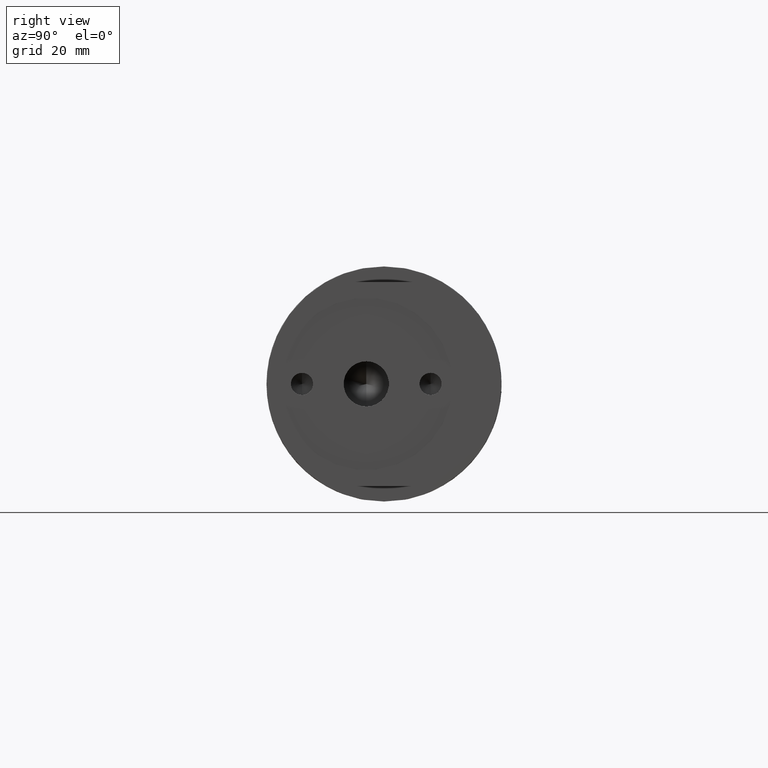
[diagram: clean part render]
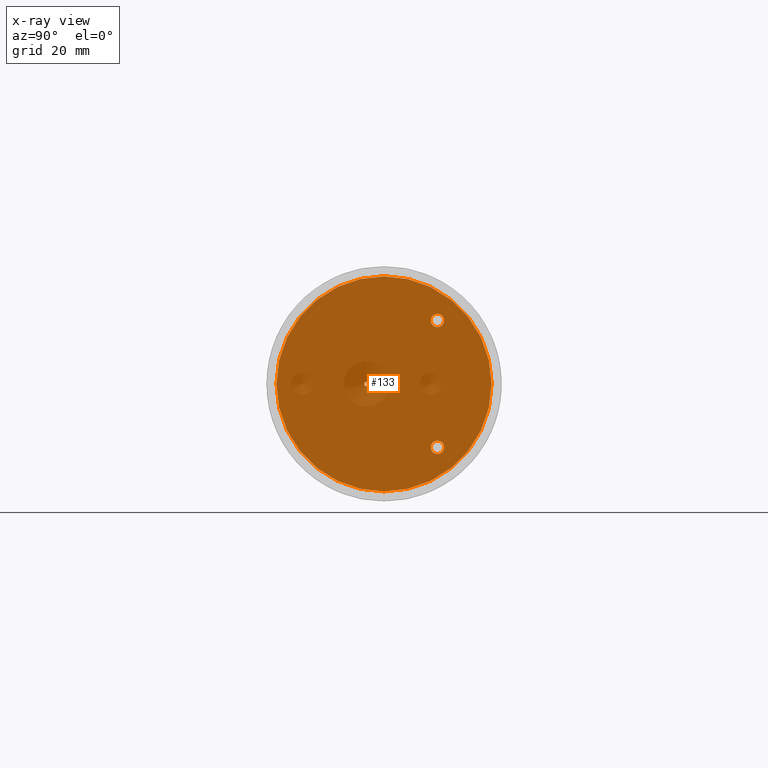
[diagram: x-ray — body ghosted, one internal face saturated and labeled with its STEP entity id]
A machine part, right view, then the same camera in x-ray: the body is ghosted and one INTERNAL B-rep face — a face not visible from any outside direction — is saturated and labeled: STEP entity #133.
In plain terms, the highlighted planar face has unit normal (-1, 0, 0).
Its self-contained STEP definition (entity closure, byte-faithful):
#133 = ADVANCED_FACE ( 'NONE', ( #19493, #13797, #5782, #1884 ), #9683, .T. ) ;
#343 = AXIS2_PLACEMENT_3D ( 'NONE', #17830, #2997, #14654 ) ;
#702 = DIRECTION ( 'NONE',  ( -1.000000000000000000, 0.0000000000000000000, 0.0000000000000000000 ) ) ;
#776 = CARTESIAN_POINT ( 'NONE',  ( -86.00000000000000000, 2.969768487932331700E-015, 24.25000000000000000 ) ) ;
#817 = EDGE_CURVE ( 'NONE', #11658, #9457, #8091, .T. ) ;
#1356 = VERTEX_POINT ( 'NONE', #10509 ) ;
#1413 = AXIS2_PLACEMENT_3D ( 'NONE', #9877, #14859, #11324 ) ;
#1642 = AXIS2_PLACEMENT_3D ( 'NONE', #7788, #19265, #19338 ) ;
#1782 = VERTEX_POINT ( 'NONE', #10558 ) ;
#1884 = FACE_OUTER_BOUND ( 'NONE', #6103, .T. ) ;
#2642 = AXIS2_PLACEMENT_3D ( 'NONE', #20429, #12115, #15293 ) ;
#2755 = CARTESIAN_POINT ( 'NONE',  ( -86.00000000000000000, 0.0000000000000000000, -24.25000000000000000 ) ) ;
#2878 = DIRECTION ( 'NONE',  ( 0.0000000000000000000, 0.0000000000000000000, -1.000000000000000000 ) ) ;
#2934 = AXIS2_PLACEMENT_3D ( 'NONE', #10583, #702, #17176 ) ;
#2997 = DIRECTION ( 'NONE',  ( -1.000000000000000000, 0.0000000000000000000, 0.0000000000000000000 ) ) ;
#3014 = CARTESIAN_POINT ( 'NONE',  ( -86.00000000000000000, -4.000000000000000000, 0.0000000000000000000 ) ) ;
#3291 = CARTESIAN_POINT ( 'NONE',  ( -86.00000000000000000, 12.05000000000000100, 12.80500000000000000 ) ) ;
#4076 = DIRECTION ( 'NONE',  ( 0.0000000000000000000, 0.0000000000000000000, 1.000000000000000000 ) ) ;
#4889 = VERTEX_POINT ( 'NONE', #3291 ) ;
#4892 = DIRECTION ( 'NONE',  ( 0.0000000000000000000, 1.000000000000000000, 0.0000000000000000000 ) ) ;
#5421 = AXIS2_PLACEMENT_3D ( 'NONE', #3014, #11273, #4892 ) ;
#5634 = ORIENTED_EDGE ( 'NONE', *, *, #9396, .T. ) ;
#5782 = FACE_BOUND ( 'NONE', #9665, .T. ) ;
#6103 = EDGE_LOOP ( 'NONE', ( #13646, #19631 ) ) ;
#6113 = DIRECTION ( 'NONE',  ( 0.0000000000000000000, 0.0000000000000000000, -1.000000000000000000 ) ) ;
#6479 = EDGE_CURVE ( 'NONE', #9648, #4889, #15997, .T. ) ;
#6729 = CARTESIAN_POINT ( 'NONE',  ( -86.00000000000000000, 12.05000000000000100, -15.80500000000000000 ) ) ;
#7632 = CARTESIAN_POINT ( 'NONE',  ( -86.00000000000000000, 0.0000000000000000000, 0.0000000000000000000 ) ) ;
#7788 = CARTESIAN_POINT ( 'NONE',  ( -86.00000000000000000, -1.053161464287244000E-014, 0.0000000000000000000 ) ) ;
#7938 = CIRCLE ( 'NONE', #14692, 24.25000000000000000 ) ;
#8029 = EDGE_CURVE ( 'NONE', #9457, #11658, #7938, .T. ) ;
#8091 = CIRCLE ( 'NONE', #17465, 24.25000000000000000 ) ;
#8741 = VERTEX_POINT ( 'NONE', #19591 ) ;
#9001 = EDGE_LOOP ( 'NONE', ( #18739, #19411 ) ) ;
#9184 = DIRECTION ( 'NONE',  ( 1.000000000000000000, 0.0000000000000000000, 0.0000000000000000000 ) ) ;
#9396 = EDGE_CURVE ( 'NONE', #1356, #1782, #17213, .T. ) ;
#9457 = VERTEX_POINT ( 'NONE', #776 ) ;
#9648 = VERTEX_POINT ( 'NONE', #13322 ) ;
#9665 = EDGE_LOOP ( 'NONE', ( #12650, #5634 ) ) ;
#9683 = PLANE ( 'NONE',  #1642 ) ;
#9877 = CARTESIAN_POINT ( 'NONE',  ( -86.00000000000000000, 12.05000000000000100, -14.30500000000000000 ) ) ;
#10306 = EDGE_CURVE ( 'NONE', #1782, #1356, #20560, .T. ) ;
#10509 = CARTESIAN_POINT ( 'NONE',  ( -86.00000000000000000, -4.500000000000000900, 6.123233995736750000E-017 ) ) ;
#10558 = CARTESIAN_POINT ( 'NONE',  ( -86.00000000000000000, -3.500000000000000000, 0.0000000000000000000 ) ) ;
#10583 = CARTESIAN_POINT ( 'NONE',  ( -86.00000000000000000, 12.05000000000000100, 14.30500000000000000 ) ) ;
#11067 = EDGE_CURVE ( 'NONE', #15531, #8741, #11485, .T. ) ;
#11273 = DIRECTION ( 'NONE',  ( 1.000000000000000000, 1.216938440261776000E-016, 0.0000000000000000000 ) ) ;
#11308 = EDGE_CURVE ( 'NONE', #8741, #15531, #13294, .T. ) ;
#11324 = DIRECTION ( 'NONE',  ( 0.0000000000000000000, 0.0000000000000000000, 1.000000000000000000 ) ) ;
#11485 = CIRCLE ( 'NONE', #16643, 1.499999999999999600 ) ;
#11658 = VERTEX_POINT ( 'NONE', #2755 ) ;
#12115 = DIRECTION ( 'NONE',  ( 1.000000000000000000, 1.216938440261776000E-016, 0.0000000000000000000 ) ) ;
#12632 = DIRECTION ( 'NONE',  ( 1.000000000000000000, 0.0000000000000000000, 0.0000000000000000000 ) ) ;
#12650 = ORIENTED_EDGE ( 'NONE', *, *, #10306, .T. ) ;
#12720 = EDGE_CURVE ( 'NONE', #4889, #9648, #17391, .T. ) ;
#12802 = CARTESIAN_POINT ( 'NONE',  ( -86.00000000000000000, 0.0000000000000000000, 0.0000000000000000000 ) ) ;
#13294 = CIRCLE ( 'NONE', #1413, 1.499999999999999600 ) ;
#13322 = CARTESIAN_POINT ( 'NONE',  ( -86.00000000000000000, 12.05000000000000100, 15.80500000000000000 ) ) ;
#13646 = ORIENTED_EDGE ( 'NONE', *, *, #817, .F. ) ;
#13797 = FACE_BOUND ( 'NONE', #13954, .T. ) ;
#13954 = EDGE_LOOP ( 'NONE', ( #16257, #15052 ) ) ;
#14243 = CARTESIAN_POINT ( 'NONE',  ( -86.00000000000000000, 12.05000000000000100, -14.30500000000000000 ) ) ;
#14654 = DIRECTION ( 'NONE',  ( 0.0000000000000000000, 0.0000000000000000000, 1.000000000000000000 ) ) ;
#14692 = AXIS2_PLACEMENT_3D ( 'NONE', #12802, #9184, #2878 ) ;
#14859 = DIRECTION ( 'NONE',  ( -1.000000000000000000, 0.0000000000000000000, 0.0000000000000000000 ) ) ;
#15052 = ORIENTED_EDGE ( 'NONE', *, *, #12720, .F. ) ;
#15293 = DIRECTION ( 'NONE',  ( 0.0000000000000000000, 1.000000000000000000, 0.0000000000000000000 ) ) ;
#15531 = VERTEX_POINT ( 'NONE', #6729 ) ;
#15997 = CIRCLE ( 'NONE', #2934, 1.499999999999999600 ) ;
#16257 = ORIENTED_EDGE ( 'NONE', *, *, #6479, .F. ) ;
#16643 = AXIS2_PLACEMENT_3D ( 'NONE', #14243, #20587, #4076 ) ;
#17176 = DIRECTION ( 'NONE',  ( 0.0000000000000000000, 0.0000000000000000000, 1.000000000000000000 ) ) ;
#17213 = CIRCLE ( 'NONE', #2642, 0.5000000000000000000 ) ;
#17391 = CIRCLE ( 'NONE', #343, 1.499999999999999600 ) ;
#17465 = AXIS2_PLACEMENT_3D ( 'NONE', #7632, #12632, #6113 ) ;
#17830 = CARTESIAN_POINT ( 'NONE',  ( -86.00000000000000000, 12.05000000000000100, 14.30500000000000000 ) ) ;
#18739 = ORIENTED_EDGE ( 'NONE', *, *, #11308, .F. ) ;
#19265 = DIRECTION ( 'NONE',  ( -1.000000000000000000, 0.0000000000000000000, 0.0000000000000000000 ) ) ;
#19338 = DIRECTION ( 'NONE',  ( 0.0000000000000000000, 0.0000000000000000000, 1.000000000000000000 ) ) ;
#19411 = ORIENTED_EDGE ( 'NONE', *, *, #11067, .F. ) ;
#19493 = FACE_BOUND ( 'NONE', #9001, .T. ) ;
#19591 = CARTESIAN_POINT ( 'NONE',  ( -86.00000000000000000, 12.05000000000000100, -12.80500000000000000 ) ) ;
#19631 = ORIENTED_EDGE ( 'NONE', *, *, #8029, .F. ) ;
#20429 = CARTESIAN_POINT ( 'NONE',  ( -86.00000000000000000, -4.000000000000000000, 0.0000000000000000000 ) ) ;
#20560 = CIRCLE ( 'NONE', #5421, 0.5000000000000000000 ) ;
#20587 = DIRECTION ( 'NONE',  ( -1.000000000000000000, 0.0000000000000000000, 0.0000000000000000000 ) ) ;